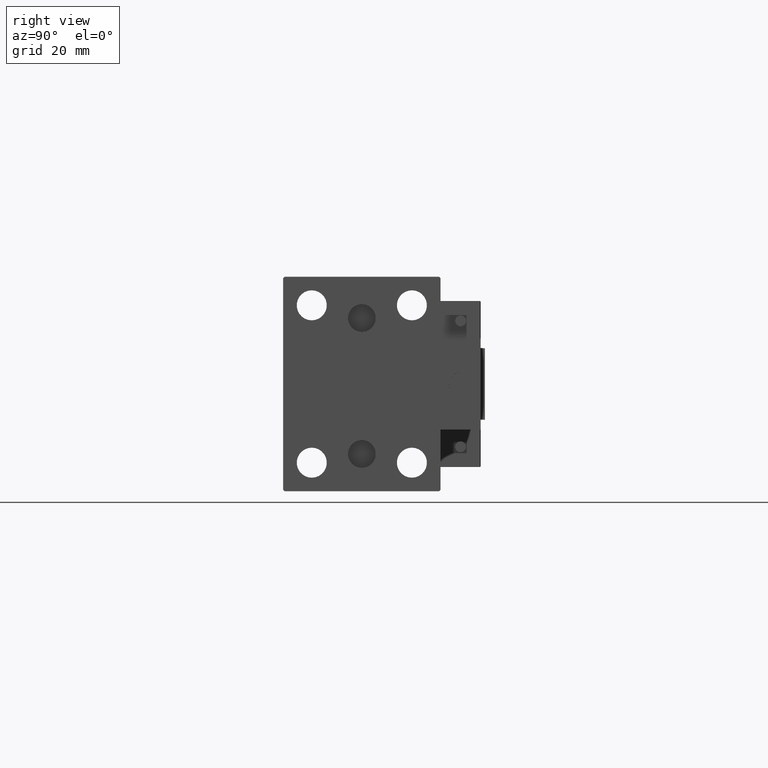
[diagram: clean part render]
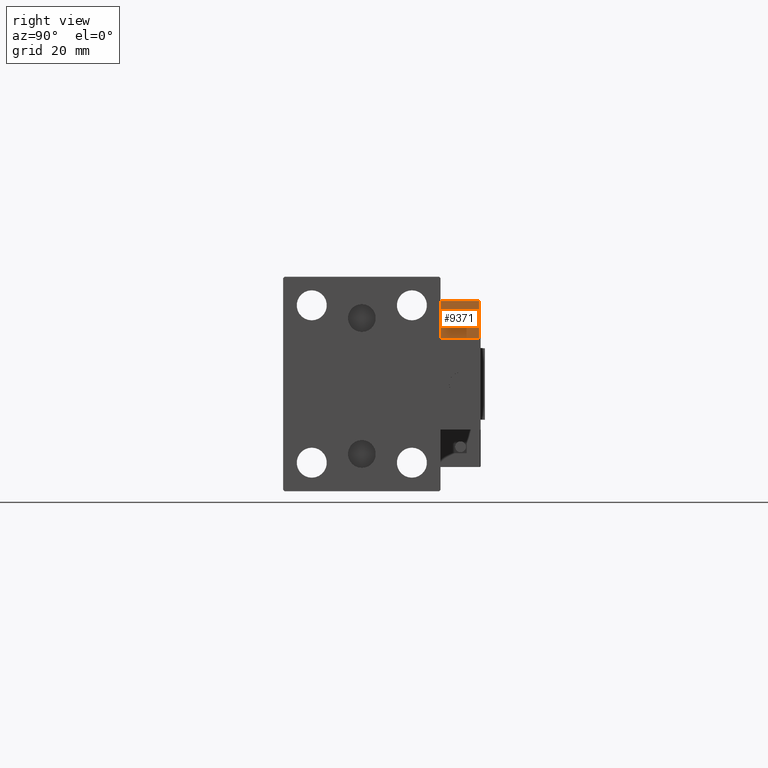
[diagram: same view with one face highlighted and labeled with its STEP entity id]
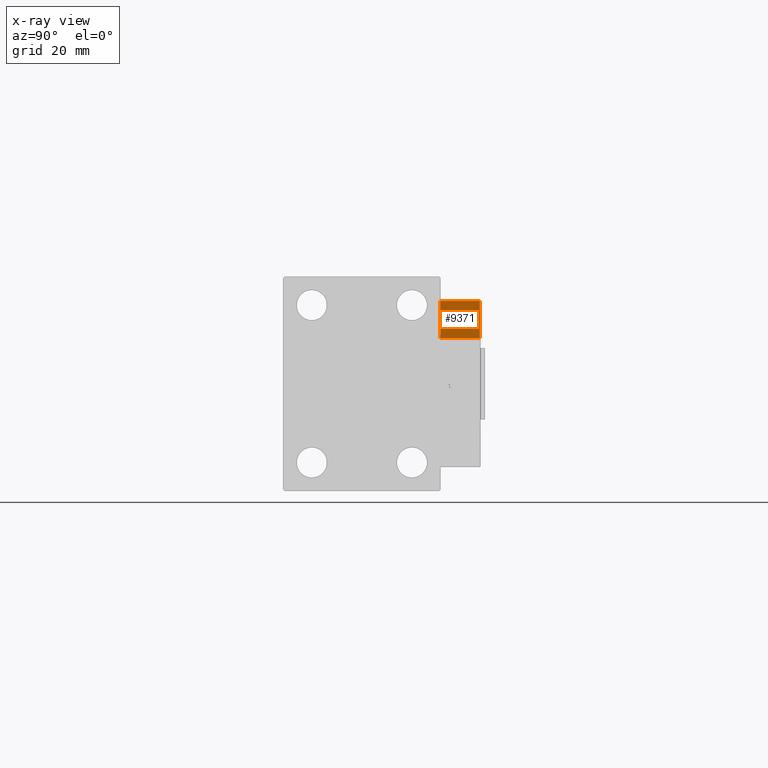
[diagram: x-ray of the same camera — body ghosted, the highlighted face saturated]
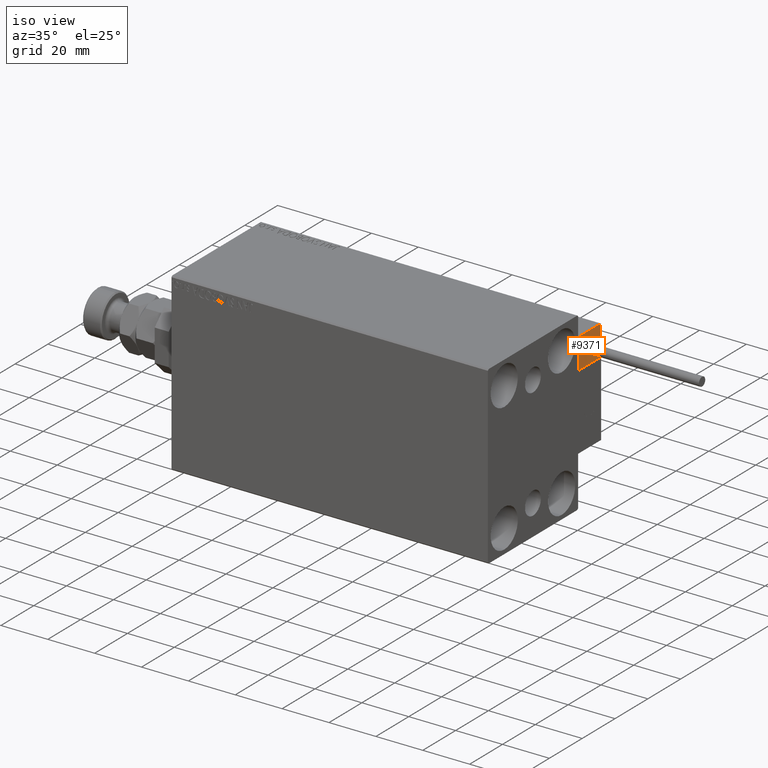
[diagram: same view with one face highlighted and labeled with its STEP entity id]
A machine part, right view. The second image highlights one B-rep face of the part: STEP entity #9371.
The next image is the same camera in x-ray: the body ghosted, the highlighted face saturated — about 6% of this face is hidden behind the body in this view.
A second angle (iso view) of the same face is appended — the face is thin or edge-on in the first view.
In plain terms, the highlighted planar face has unit normal (-1, 0, 0).
Its self-contained STEP definition (entity closure, byte-faithful):
#674 = VERTEX_POINT ( 'NONE', #8792 ) ;
#1594 = PLANE ( 'NONE',  #38179 ) ;
#3483 = EDGE_CURVE ( 'NONE', #49477, #34638, #14964, .T. ) ;
#4353 = CARTESIAN_POINT ( 'NONE',  ( -26.99999999999993605, 20.00000000000002132, 0.000000000000000000 ) ) ;
#4706 = VECTOR ( 'NONE', #41804, 1000.000000000000000 ) ;
#5269 = EDGE_CURVE ( 'NONE', #49477, #674, #48902, .T. ) ;
#8347 = EDGE_CURVE ( 'NONE', #46104, #674, #15857, .T. ) ;
#8449 = FACE_OUTER_BOUND ( 'NONE', #24796, .T. ) ;
#8792 = CARTESIAN_POINT ( 'NONE',  ( -26.99999999999994671, 7.000000000000005329, 0.000000000000000000 ) ) ;
#9371 = ADVANCED_FACE ( 'NONE', ( #8449 ), #1594, .F. ) ;
#9650 = CARTESIAN_POINT ( 'NONE',  ( -26.99999999999993605, 20.00000000000002132, 0.000000000000000000 ) ) ;
#10488 = LINE ( 'NONE', #17561, #4706 ) ;
#11282 = ORIENTED_EDGE ( 'NONE', *, *, #45001, .T. ) ;
#11299 = DIRECTION ( 'NONE',  ( 8.006416042969869188E-16, 1.000000000000000000, -0.000000000000000000 ) ) ;
#14964 = LINE ( 'NONE', #26970, #21706 ) ;
#15673 = ORIENTED_EDGE ( 'NONE', *, *, #8347, .T. ) ;
#15857 = LINE ( 'NONE', #4353, #44792 ) ;
#17561 = CARTESIAN_POINT ( 'NONE',  ( -26.99999999999993605, 20.00000000000002132, 14.00000000000000000 ) ) ;
#21706 = VECTOR ( 'NONE', #11299, 1000.000000000000000 ) ;
#23160 = DIRECTION ( 'NONE',  ( -8.006416042969869188E-16, -1.000000000000000000, 0.000000000000000000 ) ) ;
#24358 = CARTESIAN_POINT ( 'NONE',  ( -26.99999999999993605, 20.00000000000002132, 14.00000000000000000 ) ) ;
#24796 = EDGE_LOOP ( 'NONE', ( #46920, #50657, #11282, #15673 ) ) ;
#26970 = CARTESIAN_POINT ( 'NONE',  ( -26.99999999999993605, 20.00000000000002132, 13.70000000000000107 ) ) ;
#28864 = VECTOR ( 'NONE', #37694, 1000.000000000000000 ) ;
#33252 = CARTESIAN_POINT ( 'NONE',  ( -26.99999999999994671, 7.000000000000005329, 14.00000000000000000 ) ) ;
#33727 = CARTESIAN_POINT ( 'NONE',  ( -26.99999999999994671, 7.000000000000005329, 13.70000000000000107 ) ) ;
#34638 = VERTEX_POINT ( 'NONE', #35318 ) ;
#35318 = CARTESIAN_POINT ( 'NONE',  ( -26.99999999999993605, 20.00000000000002132, 13.70000000000000107 ) ) ;
#37694 = DIRECTION ( 'NONE',  ( -0.000000000000000000, -0.000000000000000000, -1.000000000000000000 ) ) ;
#38179 = AXIS2_PLACEMENT_3D ( 'NONE', #24358, #40277, #48081 ) ;
#40277 = DIRECTION ( 'NONE',  ( 1.000000000000000000, -8.006416042969869188E-16, 0.000000000000000000 ) ) ;
#41804 = DIRECTION ( 'NONE',  ( -0.000000000000000000, -0.000000000000000000, -1.000000000000000000 ) ) ;
#44792 = VECTOR ( 'NONE', #23160, 1000.000000000000000 ) ;
#45001 = EDGE_CURVE ( 'NONE', #34638, #46104, #10488, .T. ) ;
#46104 = VERTEX_POINT ( 'NONE', #9650 ) ;
#46920 = ORIENTED_EDGE ( 'NONE', *, *, #5269, .F. ) ;
#48081 = DIRECTION ( 'NONE',  ( 8.006416042969869188E-16, 1.000000000000000000, 0.000000000000000000 ) ) ;
#48902 = LINE ( 'NONE', #33252, #28864 ) ;
#49477 = VERTEX_POINT ( 'NONE', #33727 ) ;
#50657 = ORIENTED_EDGE ( 'NONE', *, *, #3483, .T. ) ;